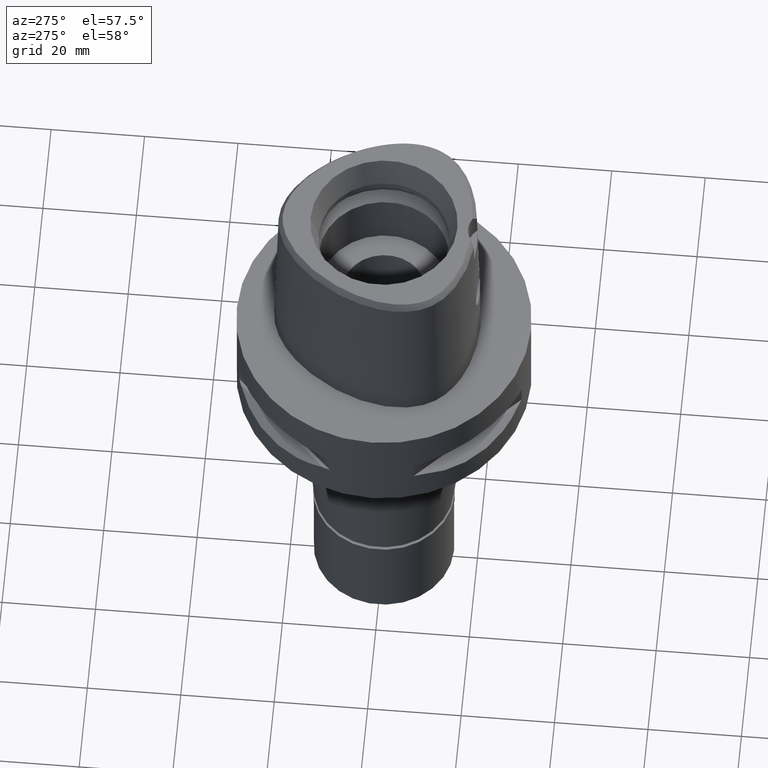
[diagram: clean part render]
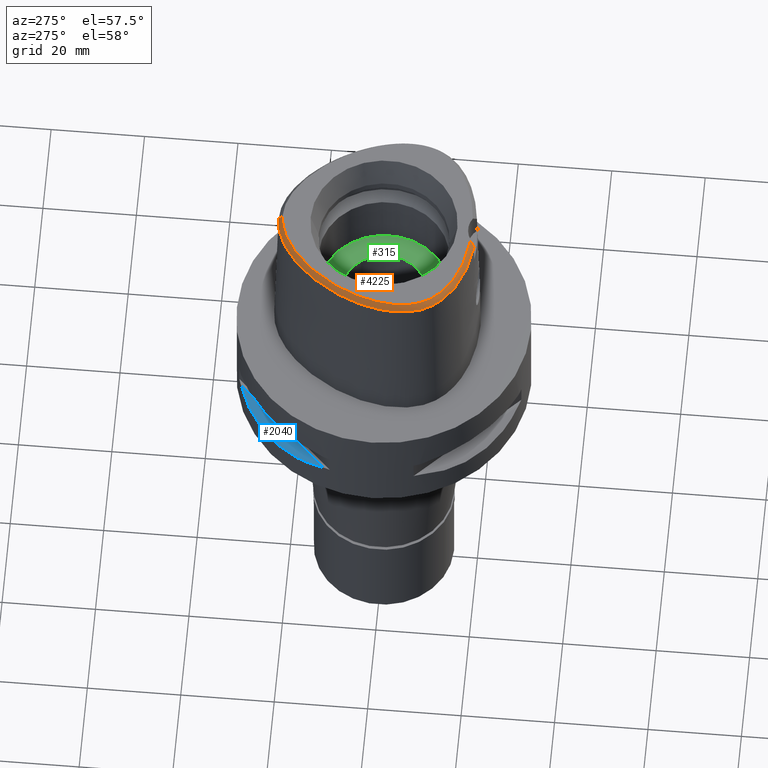
[diagram: same view with three faces highlighted in distinct colors, each labeled with its STEP entity id]
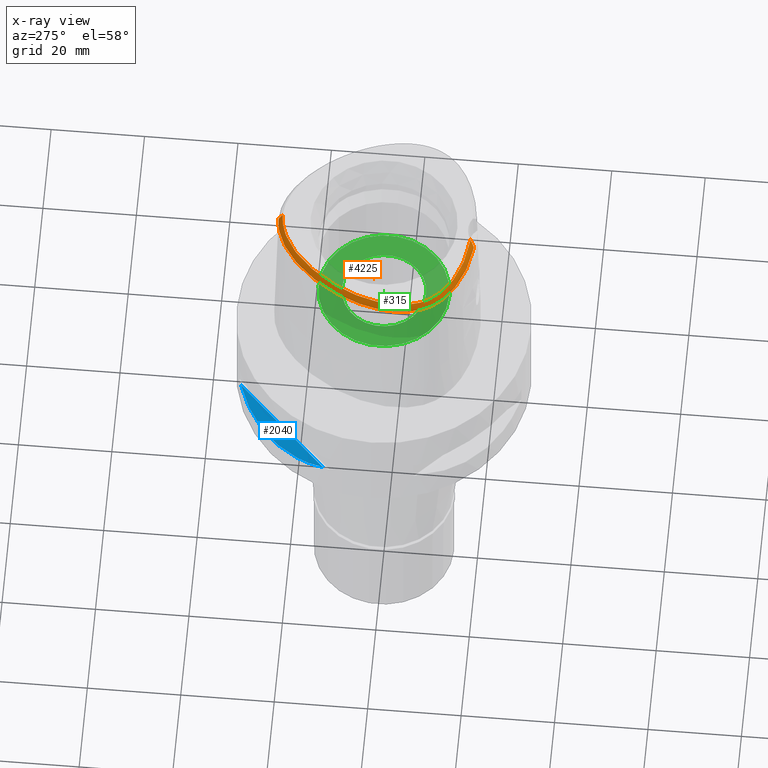
[diagram: x-ray of the same camera — body ghosted, the three highlighted faces saturated]
A machine part, auxiliary view with three faces highlighted in distinct colors.
The next image is the same camera in x-ray (body ghosted, the three faces saturated) — at least one of them is partly hidden behind the body in this view.
Their STEP definitions:

[orange] entity #4225 — the highlighted face is a freeform B-spline surface patch.
#14 = CARTESIAN_POINT ( 'NONE',  ( -2.682279906006999948, -18.78035848609999903, 38.00000000000000000 ) ) ;
#15 = CARTESIAN_POINT ( 'NONE',  ( -14.15561487457000034, 14.37251134389999940, 36.36553170129000279 ) ) ;
#38 = CARTESIAN_POINT ( 'NONE',  ( -13.88125040610999861, 14.14979837763999981, 36.96245013272000079 ) ) ;
#69 = CARTESIAN_POINT ( 'NONE',  ( -11.90262928197000036, 16.35908743151999900, 36.96245287757999165 ) ) ;
#91 = CARTESIAN_POINT ( 'NONE',  ( -2.735698246182634907, 21.34559102902546712, 38.00000000000336087 ) ) ;
#93 = CARTESIAN_POINT ( 'NONE',  ( -18.82196732919999960, -11.93859148648999913, 36.96245027513999304 ) ) ;
#113 = CARTESIAN_POINT ( 'NONE',  ( -16.93638123745656188, -13.22593246128079869, 37.99999999999731415 ) ) ;
#114 = CARTESIAN_POINT ( 'NONE',  ( -20.92478965621000242, -8.037788835625001127, 36.36553208403999804 ) ) ;
#143 = CARTESIAN_POINT ( 'NONE',  ( -16.88647904404979627, 8.517821442301801937, 38.00000000000139977 ) ) ;
#144 = CARTESIAN_POINT ( 'NONE',  ( -18.17235007819999737, -13.32913049258000093, 36.36553226932000626 ) ) ;
#167 = CARTESIAN_POINT ( 'NONE',  ( -19.64434054693006715, 1.520253387635419173, 37.99999999999666755 ) ) ;
#168 = CARTESIAN_POINT ( 'NONE',  ( -20.03207839318999817, -8.619615530778999002, 37.55936869522999189 ) ) ;
#191 = CARTESIAN_POINT ( 'NONE',  ( -19.78262210840123103, -8.543146992551859498, 38.00000000000299138 ) ) ;
#192 = CARTESIAN_POINT ( 'NONE',  ( -14.95020069249000016, -14.75015485291999973, 38.15628685411000021 ) ) ;
#210 = EDGE_CURVE ( 'NONE', #2037, #1228, #1054, .T. ) ;
#221 = CARTESIAN_POINT ( 'NONE',  ( -12.78586055575000024, -17.21545330188000023, 36.36553202803000318 ) ) ;
#247 = CARTESIAN_POINT ( 'NONE',  ( -4.793915152027000914, -19.17527128685999926, 36.96245047760999825 ) ) ;
#253 = CARTESIAN_POINT ( 'NONE',  ( -8.190760515302001110, 19.90052794231999655, 36.36553225457000593 ) ) ;
#270 = CARTESIAN_POINT ( 'NONE',  ( -14.71655449176000019, -16.16976819960000000, 36.36553270585999798 ) ) ;
#277 = CARTESIAN_POINT ( 'NONE',  ( -10.90458607742999853, 17.31921845882000000, 36.96245300241999843 ) ) ;
#294 = CARTESIAN_POINT ( 'NONE',  ( -6.371299248503000889, -19.26847960896999723, 36.36553203572999848 ) ) ;
#301 = CARTESIAN_POINT ( 'NONE',  ( -11.39981737510000137, 15.86238998910999953, 38.15628658213999813 ) ) ;
#321 = CARTESIAN_POINT ( 'NONE',  ( -2.084620644797000377, -19.08405090843999830, 37.55936894352999644 ) ) ;
#326 = CARTESIAN_POINT ( 'NONE',  ( 0.6090471797555999656, 21.93173460623999915, 37.55936857148000740 ) ) ;
#330 = CARTESIAN_POINT ( 'NONE',  ( -20.09619618741216840, -10.23243843868544189, 36.52186244848004293 ) ) ;
#346 = CARTESIAN_POINT ( 'NONE',  ( -4.706994425064518595, -18.56721852572622211, 38.00000000000462563 ) ) ;
#347 = CARTESIAN_POINT ( 'NONE',  ( -3.559529968557000323, 21.38391089510999876, 37.55936882499000262 ) ) ;
#349 = CARTESIAN_POINT ( 'NONE',  ( -18.90964971338053147, -12.28759719904723369, 36.52186244848004293 ) ) ;
#371 = CARTESIAN_POINT ( 'NONE',  ( -12.15403523541000119, 16.60743615272000184, 36.36553602530999285 ) ) ;
#399 = CARTESIAN_POINT ( 'NONE',  ( -18.15770850321000296, 5.635441311908000017, 38.15628691493000701 ) ) ;
#408 = ORIENTED_EDGE ( 'NONE', *, *, #874, .T. ) ;
#423 = CARTESIAN_POINT ( 'NONE',  ( -20.30807271839000094, -4.310553995648001013, 38.15628693060000387 ) ) ;
#442 = CARTESIAN_POINT ( 'NONE',  ( -6.188376196366547788, -18.31830638231498298, 38.00000000000277822 ) ) ;
#444 = CARTESIAN_POINT ( 'NONE',  ( -20.18748077147999709, 3.155086549848000299, 36.36553429178000130 ) ) ;
#469 = CARTESIAN_POINT ( 'NONE',  ( -18.31748213707096795, -11.58791794387865437, 37.99999999999748468 ) ) ;
#470 = CARTESIAN_POINT ( 'NONE',  ( -20.70794961852000071, -8.826797661603999146, 36.36553218745999771 ) ) ;
#491 = CARTESIAN_POINT ( 'NONE',  ( -11.46564124494306824, 15.92741340513072856, 38.00000000000417089 ) ) ;
#492 = CARTESIAN_POINT ( 'NONE',  ( -16.29919432625000297, -13.69510981811999883, 38.15628696512000317 ) ) ;
#512 = CARTESIAN_POINT ( 'NONE',  ( -18.24149111487000141, -11.53509569780000099, 38.15628697414000214 ) ) ;
#520 = CARTESIAN_POINT ( 'NONE',  ( -1.574545528900000111E-11, 22.56201468012000078, 36.52186680743999858 ) ) ;
#537 = CARTESIAN_POINT ( 'NONE',  ( -12.44116897271257294, 14.89128547409854519, 38.00000000000689226 ) ) ;
#539 = CARTESIAN_POINT ( 'NONE',  ( -19.89425573369999967, -7.788108179216000515, 38.15628695899999911 ) ) ;
#561 = EDGE_LOOP ( 'NONE', ( #408, #2870, #3857, #3106 ) ) ;
#564 = CARTESIAN_POINT ( 'NONE',  ( -6.759433772716245237, 19.65454812512846061, 37.99999999999781863 ) ) ;
#565 = CARTESIAN_POINT ( 'NONE',  ( -15.66089399674000227, -14.22552793682999983, 38.15628693306999963 ) ) ;
#590 = CARTESIAN_POINT ( 'NONE',  ( -10.37555402557000050, -17.82577395762999828, 36.96245210350999599 ) ) ;
#618 = CARTESIAN_POINT ( 'NONE',  ( -12.48307952214000061, -16.57677265975999603, 37.55936865225000076 ) ) ;
#627 = CARTESIAN_POINT ( 'NONE',  ( -4.221609895908000176, 20.78012750210999826, 38.15628694924000541 ) ) ;
#645 = CARTESIAN_POINT ( 'NONE',  ( -6.304494562574999961, -18.92147017935999997, 36.96245034502000237 ) ) ;
#650 = CARTESIAN_POINT ( 'NONE',  ( -10.42711818056999995, 16.79809784193000155, 38.15628656333999658 ) ) ;
#665 = CARTESIAN_POINT ( 'NONE',  ( -13.45877726181000078, -16.08090596777000059, 37.55936868451999544 ) ) ;
#670 = CARTESIAN_POINT ( 'NONE',  ( -7.250791040499000140, 20.48824525087999859, 36.36553221753000287 ) ) ;
#672 = CARTESIAN_POINT ( 'NONE',  ( -2.376843896518209931, 22.39422508474159201, 36.52186244848004293 ) ) ;
#685 = CARTESIAN_POINT ( 'NONE',  ( -2.339047829579000037, -19.77621625256000115, 36.36553316183000106 ) ) ;
#693 = CARTESIAN_POINT ( 'NONE',  ( -7.799596866748999879, 19.31181190207000142, 37.55936871331999782 ) ) ;
#699 = CARTESIAN_POINT ( 'NONE',  ( -21.07430010672547382, -0.4408303445193073600, 36.52186244848004293 ) ) ;
#716 = CARTESIAN_POINT ( 'NONE',  ( 0.4010250955880000356, 21.94252875099999756, 37.55936870059999677 ) ) ;
#735 = CARTESIAN_POINT ( 'NONE',  ( -18.48357437321000063, 5.772141510946000587, 37.55936879158999631 ) ) ;
#761 = CARTESIAN_POINT ( 'NONE',  ( -20.21289916717000068, -2.186441093946000169, 38.15628698880000513 ) ) ;
#793 = CARTESIAN_POINT ( 'NONE',  ( -15.46417231459999897, 11.40156152031999959, 37.55936897250000328 ) ) ;
#815 = CARTESIAN_POINT ( 'NONE',  ( -3.522896839653766321, -18.70811514173364642, 37.99999999999904077 ) ) ;
#817 = CARTESIAN_POINT ( 'NONE',  ( -12.89877010955000003, 15.30103412609000024, 36.96245101198000071 ) ) ;
#842 = CARTESIAN_POINT ( 'NONE',  ( -20.54375063498000031, 0.3470507299212000629, 36.96245268442000054 ) ) ;
#866 = CARTESIAN_POINT ( 'NONE',  ( -18.79649882724764964, 4.256255933890432885, 37.99999999999680256 ) ) ;
#867 = CARTESIAN_POINT ( 'NONE',  ( -20.88880712119999572, -6.256237671464000449, 36.96245074902000738 ) ) ;
#874 = EDGE_CURVE ( 'NONE', #3910, #3824, #3610, .T. ) ;
#890 = CARTESIAN_POINT ( 'NONE',  ( -15.87857969376999989, -14.50397203446000027, 37.55936874044999740 ) ) ;
#913 = CARTESIAN_POINT ( 'NONE',  ( -20.12460019942000145, -9.443526376059001137, 36.96245074920999940 ) ) ;
#943 = CARTESIAN_POINT ( 'NONE',  ( -15.00295592773807840, -14.82617991125373891, 38.00000000000046896 ) ) ;
#944 = CARTESIAN_POINT ( 'NONE',  ( -17.11999605601999974, -13.41129618159000181, 37.55936867769999310 ) ) ;
#953 = DIRECTION ( 'NONE',  ( -1.103957904740014787E-11, -0.5092834681090075977, 0.8605988316927122295 ) ) ;
#971 = CARTESIAN_POINT ( 'NONE',  ( -21.23964671826000128, -6.298992860830000318, 36.36553267215000318 ) ) ;
#994 = CARTESIAN_POINT ( 'NONE',  ( -2.315192615092000139, -19.42377305223000050, 36.96245105986000112 ) ) ;
#1001 = CARTESIAN_POINT ( 'NONE',  ( -2.130580368720000006, 22.10660074423000054, 36.96245044786000022 ) ) ;
#1030 = CARTESIAN_POINT ( 'NONE',  ( -9.465367539356998705, 17.63428323412999887, 38.15628680009000107 ) ) ;
#1045 = CARTESIAN_POINT ( 'NONE',  ( -2.659091465188000214, -19.04529799372999932, 37.55936897180000500 ) ) ;
#1051 = CARTESIAN_POINT ( 'NONE',  ( -7.604015042473000641, 19.01745388193999986, 38.15628694269000221 ) ) ;
#1054 = B_SPLINE_CURVE_WITH_KNOTS ( 'NONE', 3,
 ( #1807, #3430, #1075, #1836, #4526, #3362, #1102, #349, #3339, #330, #1877, #2580, #4172, #699, #4977, #1857, #1502, #4113, #3391, #4475, #672, #4150, #1433 ),
 .UNSPECIFIED., .F., .F.,
 ( 4, 1, 1, 1, 1, 1, 1, 1, 1, 1, 1, 1, 1, 1, 1, 1, 1, 1, 1, 1, 4 ),
 ( 0.0000000000000000000, 0.03580973941716571185, 0.1234633994701219151, 0.1672902294965474546, 0.2111170595229729940, 0.2549438895495037549, 0.2768573045627165108, 0.2987707195758241285, 0.3206841345891420225, 0.3425975496023548894, 0.3864243796287802901, 0.4302512096552058574, 0.4740780396816314246, 0.5617316997345875862, 0.6493853597875438588, 0.7370390198403948823, 0.8246926798932460168, 0.8685195099196715285, 0.9123463399461285706, 0.9561731699725646294, 1.000000000000000000 ),
 .UNSPECIFIED. ) ;
#1067 = CARTESIAN_POINT ( 'NONE',  ( -2.714526537066000333, -19.74963786283999667, 36.36553321337999733 ) ) ;
#1072 = CARTESIAN_POINT ( 'NONE',  ( 0.4272751750131000281, 22.64864445263000192, 36.36553220741000558 ) ) ;
#1075 = CARTESIAN_POINT ( 'NONE',  ( -7.300578999876935704, -19.07170748891635270, 36.52186244848004293 ) ) ;
#1089 = CARTESIAN_POINT ( 'NONE',  ( -11.41714857666000071, -17.04922920670000153, 37.55936863344999921 ) ) ;
#1096 = CARTESIAN_POINT ( 'NONE',  ( 0.6482317870641000068, 22.63710033531999954, 36.36553172845000148 ) ) ;
#1102 = CARTESIAN_POINT ( 'NONE',  ( -17.90324032096463114, -13.53935111954962700, 36.52186244848004293 ) ) ;
#1120 = CARTESIAN_POINT ( 'NONE',  ( -17.11638653573000113, 8.641056364138000490, 37.55936880642000375 ) ) ;
#1142 = CARTESIAN_POINT ( 'NONE',  ( -19.89700593447999921, 1.585135570823000162, 37.55936985146000495 ) ) ;
#1167 = CARTESIAN_POINT ( 'NONE',  ( -2.841965291530507365, -18.76757795571910492, 37.99999999999995737 ) ) ;
#1169 = CARTESIAN_POINT ( 'NONE',  ( -18.80944024319999741, 5.908841709984000268, 36.96245066826000425 ) ) ;
#1197 = CARTESIAN_POINT ( 'NONE',  ( -19.04161127055000335, 4.345510450024000271, 37.55936853625000538 ) ) ;
#1211 = CARTESIAN_POINT ( 'NONE',  ( -3.637738201363999835, -19.56971413236999879, 36.52186244848000030 ) ) ;
#1219 = CARTESIAN_POINT ( 'NONE',  ( -17.83974496342000293, 7.211005655489000077, 37.55936898027999860 ) ) ;
#1228 = VERTEX_POINT ( 'NONE', #4660 ) ;
#1240 = CARTESIAN_POINT ( 'NONE',  ( -20.27898581532276623, -6.181921586190226137, 37.99999999999830180 ) ) ;
#1241 = CARTESIAN_POINT ( 'NONE',  ( -19.11220543636000002, -12.14033938082999953, 36.36553192563999204 ) ) ;
#1267 = CARTESIAN_POINT ( 'NONE',  ( -3.470663397168999981E-11, 21.68728795390000030, 38.00000000000000000 ) ) ;
#1268 = CARTESIAN_POINT ( 'NONE',  ( -20.05983946533000051, -7.007754796703999922, 38.15628696427999955 ) ) ;
#1292 = CARTESIAN_POINT ( 'NONE',  ( -20.40763731352000221, -7.070670777564999732, 37.55936865246999901 ) ) ;
#1316 = CARTESIAN_POINT ( 'NONE',  ( -15.71788912669608607, -14.29843101565604258, 38.00000000000226663 ) ) ;
#1317 = CARTESIAN_POINT ( 'NONE',  ( -18.39195674092999866, -12.51888354077000010, 36.96245084350000099 ) ) ;
#1345 = CARTESIAN_POINT ( 'NONE',  ( -3.481017203588733455, 21.13509756881288837, 37.99999999999887734 ) ) ;
#1347 = CARTESIAN_POINT ( 'NONE',  ( -19.52420267404000143, -9.975983566325000496, 37.55936875223999749 ) ) ;
#1374 = CARTESIAN_POINT ( 'NONE',  ( -3.624620302294999874, -19.67016351520000228, 36.36553310135000316 ) ) ;
#1381 = CARTESIAN_POINT ( 'NONE',  ( -5.851016583984999464, 20.05017033919999747, 38.15628688577000105 ) ) ;
#1394 = CARTESIAN_POINT ( 'NONE',  ( -3.513170095872999887, -18.61612458430000316, 38.15628686171999817 ) ) ;
#1401 = CARTESIAN_POINT ( 'NONE',  ( -5.164929728134000975, 20.77253018845999932, 37.55936883618000621 ) ) ;
#1420 = CARTESIAN_POINT ( 'NONE',  ( -11.28270961391000071, -16.72239752252000144, 38.15628697102000189 ) ) ;
#1429 = CARTESIAN_POINT ( 'NONE',  ( -10.14104993555999989, 18.45126664518999959, 36.36553374588999787 ) ) ;
#1433 = CARTESIAN_POINT ( 'NONE',  ( -1.574545528900000111E-11, 22.56201468012000078, 36.52186680743999858 ) ) ;
#1443 = CARTESIAN_POINT ( 'NONE',  ( -14.16158106554000007, -15.26634536455999935, 38.15628689953999952 ) ) ;
#1449 = CARTESIAN_POINT ( 'NONE',  ( -6.013442772164999894, 20.36406042224999879, 37.55936887382999601 ) ) ;
#1469 = CARTESIAN_POINT ( 'NONE',  ( -2.713139573433000162, 21.25584019731999774, 38.15628689068999790 ) ) ;
#1496 = CARTESIAN_POINT ( 'NONE',  ( -20.41806261984999793, -0.9706525413620999965, 37.55936884010999677 ) ) ;
#1502 = CARTESIAN_POINT ( 'NONE',  ( -13.70645028111149344, 15.04851272300912335, 36.52186244848004293 ) ) ;
#1522 = CARTESIAN_POINT ( 'NONE',  ( -15.12356429809999980, 13.12083916591999966, 36.36553293315999724 ) ) ;
#1544 = CARTESIAN_POINT ( 'NONE',  ( -21.26802061852999870, -2.082605337003999857, 36.36553177238000245 ) ) ;
#1571 = CARTESIAN_POINT ( 'NONE',  ( -14.26948463650000143, 12.49280876299000020, 38.15628687781000394 ) ) ;
#1600 = CARTESIAN_POINT ( 'NONE',  ( -16.05277789754000040, 11.79276291938000121, 36.36553321595000199 ) ) ;
#1623 = CARTESIAN_POINT ( 'NONE',  ( -2.017025177696294858, 21.50280829367497404, 38.00000000000243716 ) ) ;
#1624 = CARTESIAN_POINT ( 'NONE',  ( -17.64561054852000055, -12.85766694215000072, 37.55936871729999638 ) ) ;
#1645 = CARTESIAN_POINT ( 'NONE',  ( -18.67608643721449369, -11.03561202291076881, 38.00000000000019185 ) ) ;
#1648 = CARTESIAN_POINT ( 'NONE',  ( -17.90898031336000074, -13.09339871737000038, 36.96245049331000132 ) ) ;
#1668 = B_SPLINE_CURVE_WITH_KNOTS ( 'NONE', 3,
 ( #3616, #2473, #4837, #4034 ),
 .UNSPECIFIED., .F., .F.,
 ( 4, 4 ),
 ( 0.0000000000000000000, 1.000000000000000000 ),
 .UNSPECIFIED. ) ;
#1678 = CARTESIAN_POINT ( 'NONE',  ( -21.36828742065999975, -4.320449340402999994, 36.36553238107000396 ) ) ;
#1702 = CARTESIAN_POINT ( 'NONE',  ( -17.91005512243640041, -12.13778127739362311, 38.00000000000078160 ) ) ;
#1703 = CARTESIAN_POINT ( 'NONE',  ( -19.79356315041999892, -9.319628412919998439, 37.55936882596999737 ) ) ;
#1725 = CARTESIAN_POINT ( 'NONE',  ( -20.40060226222636075, -4.311417605381375751, 38.00000000000411404 ) ) ;
#1727 = CARTESIAN_POINT ( 'NONE',  ( -20.37001400585999988, -8.723206596192000006, 36.96245044135000057 ) ) ;
#1755 = CARTESIAN_POINT ( 'NONE',  ( -3.587470233487999760, -19.31881720490000021, 36.96245102147999972 ) ) ;
#1778 = CARTESIAN_POINT ( 'NONE',  ( -4.843921986044999350, -19.52509341286999955, 36.36553224458000244 ) ) ;
#1785 = CARTESIAN_POINT ( 'NONE',  ( -8.523019350318998377, 18.37230777117000002, 38.15628699711000138 ) ) ;
#1799 = CARTESIAN_POINT ( 'NONE',  ( -9.104849329242000522, -18.23887418746999955, 36.96245311357999697 ) ) ;
#1805 = CARTESIAN_POINT ( 'NONE',  ( -1.400051809288999971, 22.22060971340999913, 36.96245008478000216 ) ) ;
#1807 = CARTESIAN_POINT ( 'NONE',  ( -3.637738201363999835, -19.56971413236999879, 36.52186244848000030 ) ) ;
#1824 = CARTESIAN_POINT ( 'NONE',  ( -2.686809001127000052, -19.39746792829000199, 36.96245109259000117 ) ) ;
#1832 = CARTESIAN_POINT ( 'NONE',  ( -4.347455389300000306, 21.11040453342999967, 37.55936869485999807 ) ) ;
#1836 = CARTESIAN_POINT ( 'NONE',  ( -10.91891098965328055, -18.03046406390440026, 36.52186244848004293 ) ) ;
#1849 = CARTESIAN_POINT ( 'NONE',  ( -2.106311742978999924, -19.43662726124999907, 36.96245102601999832 ) ) ;
#1854 = CARTESIAN_POINT ( 'NONE',  ( 0.6286394834098999462, 22.28441747077999935, 36.96245014996000577 ) ) ;
#1857 = CARTESIAN_POINT ( 'NONE',  ( -17.27359245833522294, 9.972912913898216658, 36.52186244848004293 ) ) ;
#1874 = CARTESIAN_POINT ( 'NONE',  ( -16.62509408197999861, 10.22419463632000003, 36.96245046947999668 ) ) ;
#1877 = CARTESIAN_POINT ( 'NONE',  ( -20.67704215116155453, -8.734985316449400017, 36.52186244848004293 ) ) ;
#1898 = CARTESIAN_POINT ( 'NONE',  ( -14.55417785704000089, 12.70215223062999854, 37.55936889625999697 ) ) ;
#1926 = CARTESIAN_POINT ( 'NONE',  ( -20.23928888243000301, 1.673030731871999910, 36.96245316391000557 ) ) ;
#1948 = CARTESIAN_POINT ( 'NONE',  ( -17.52074902634999987, 7.058967424023999904, 38.15628684800000059 ) ) ;
#1976 = CARTESIAN_POINT ( 'NONE',  ( -13.16203509702999952, 15.53676884143999892, 36.36553308638999482 ) ) ;
#2002 = CARTESIAN_POINT ( 'NONE',  ( -14.34402387965482184, 12.54761970512554470, 38.00000000000527223 ) ) ;
#2004 = CARTESIAN_POINT ( 'NONE',  ( -19.20146630724000048, -11.35415670124999998, 36.96245058168000241 ) ) ;
#2025 = CARTESIAN_POINT ( 'NONE',  ( -5.058220461388591715, 20.53445508814170495, 38.00000000000527933 ) ) ;
#2028 = CARTESIAN_POINT ( 'NONE',  ( -17.61747789945999898, -13.91351645992000030, 36.36553212244999855 ) ) ;
#2037 = VERTEX_POINT ( 'NONE', #1211 ) ;
#2051 = CARTESIAN_POINT ( 'NONE',  ( -18.24302769442125083, 5.671232572957731755, 38.00000000000159872 ) ) ;
#2053 = CARTESIAN_POINT ( 'NONE',  ( -20.97701905032000269, -5.318211469516999301, 36.96245108982999739 ) ) ;
#2081 = CARTESIAN_POINT ( 'NONE',  ( -18.59694803237999849, -10.98762937426000086, 38.15628692797000099 ) ) ;
#2106 = CARTESIAN_POINT ( 'NONE',  ( -12.37132652997715176, -16.34104299088043888, 37.99999999999943867 ) ) ;
#2107 = CARTESIAN_POINT ( 'NONE',  ( -18.89920716981000126, -11.17089303774999998, 37.55936875481999948 ) ) ;
#2159 = CARTESIAN_POINT ( 'NONE',  ( -6.237689876646999920, -18.57446074974999917, 37.55936865431999649 ) ) ;
#2165 = CARTESIAN_POINT ( 'NONE',  ( -1.443992829189999938, 22.57133419810999797, 36.36553162575999920 ) ) ;
#2183 = CARTESIAN_POINT ( 'NONE',  ( -13.62702884383000068, -16.39170135232999925, 36.96245041612999671 ) ) ;
#2189 = CARTESIAN_POINT ( 'NONE',  ( -10.66585212899999924, 17.05865815038000122, 37.55936978287999750 ) ) ;
#2205 = CARTESIAN_POINT ( 'NONE',  ( -10.49302957101999922, -18.15907225504999900, 36.36553480589000031 ) ) ;
#2210 = CARTESIAN_POINT ( 'NONE',  ( -11.14332002587000048, 17.57977876726000233, 36.36553622197000379 ) ) ;
#2231 = CARTESIAN_POINT ( 'NONE',  ( -15.15169264742999999, -15.04052295678999940, 37.55936896306000250 ) ) ;
#2239 = CARTESIAN_POINT ( 'NONE',  ( -8.733853281386000589, 18.65593331164999924, 37.55936855991000556 ) ) ;
#2257 = CARTESIAN_POINT ( 'NONE',  ( -5.020371889214000127, 20.45001253790999840, 38.15628689911999771 ) ) ;
#2278 = CARTESIAN_POINT ( 'NONE',  ( -13.60688593763999954, 13.92708541138000022, 37.55936856415999614 ) ) ;
#2305 = CARTESIAN_POINT ( 'NONE',  ( -20.56460631761999736, -2.151829174965999680, 37.55936858333000572 ) ) ;
#2334 = CARTESIAN_POINT ( 'NONE',  ( -7.599370508970048732, -18.01010694911068910, 38.00000000000814993 ) ) ;
#2335 = CARTESIAN_POINT ( 'NONE',  ( -20.99668819064000047, -3.250729922139000028, 36.96245043574000277 ) ) ;
#2356 = CARTESIAN_POINT ( 'NONE',  ( -17.42783961906999934, 8.808001321435000364, 36.96245070316999914 ) ) ;
#2384 = CARTESIAN_POINT ( 'NONE',  ( -14.21001600787614549, -15.34519100086094667, 38.00000000000134293 ) ) ;
#2386 = CARTESIAN_POINT ( 'NONE',  ( -20.06864378250000058, -1.023547219785000184, 38.15628689772999849 ) ) ;
#2411 = B_SPLINE_SURFACE_WITH_KNOTS ( 'NONE', 3, 3, ( 
 ( #4802, #326, #1854, #1096 ),
 ( #4472, #716, #2956, #1072 ),
 ( #3003, #4569, #3314, #2983 ),
 ( #4544, #3769, #2648, #4951 ),
 ( #4192, #4523, #1805, #2165 ),
 ( #3406, #3388, #1001, #3358 ),
 ( #1469, #4860, #2547, #3792 ),
 ( #3815, #347, #4107, #3023 ),
 ( #627, #1832, #4931, #2622 ),
 ( #2257, #1401, #4904, #3745 ),
 ( #1381, #1449, #4882, #4148 ),
 ( #3722, #4170, #2932, #670 ),
 ( #1051, #693, #2601, #253 ),
 ( #1785, #2239, #3337, #4497 ),
 ( #1030, #2577, #4130, #1429 ),
 ( #650, #2189, #277, #2210 ),
 ( #301, #2667, #69, #371 ),
 ( #2685, #4293, #817, #1976 ),
 ( #3500, #2278, #38, #15 ),
 ( #1571, #1898, #3455, #1522 ),
 ( #4268, #793, #3946, #1600 ),
 ( #3074, #3125, #1874, #3153 ),
 ( #3054, #1120, #2356, #4212 ),
 ( #1948, #1219, #4594, #4974 ),
 ( #399, #735, #1169, #4667 ),
 ( #4639, #1197, #3531, #3874 ),
 ( #4315, #3427, #4692, #444 ),
 ( #2745, #1142, #1926, #2769 ),
 ( #3478, #3917, #842, #3838 ),
 ( #2386, #1496, #4614, #4235 ),
 ( #761, #2305, #3870, #1544 ),
 ( #3094, #2716, #2335, #3894 ),
 ( #423, #3634, #4827, #1678 ),
 ( #4342, #3228, #2053, #4747 ),
 ( #2464, #4771, #867, #971 ),
 ( #1268, #1292, #3580, #2847 ),
 ( #539, #2417, #2902, #114 ),
 ( #4445, #168, #1727, #470 ),
 ( #3970, #1703, #913, #3278 ),
 ( #3251, #1347, #4393, #3993 ),
 ( #4021, #3605, #2822, #2516 ),
 ( #2081, #2107, #2004, #4718 ),
 ( #512, #3556, #93, #1241 ),
 ( #4796, #2793, #1317, #2874 ),
 ( #4420, #1624, #1648, #144 ),
 ( #3176, #944, #2494, #2028 ),
 ( #492, #3201, #4053, #4367 ),
 ( #565, #890, #2441, #3657 ),
 ( #192, #2231, #2539, #3306 ),
 ( #1443, #2997, #4161, #270 ),
 ( #4464, #665, #2183, #3738 ),
 ( #4100, #618, #3713, #221 ),
 ( #1420, #1089, #3786, #2571 ),
 ( #2925, #4853, #590, #2205 ),
 ( #4124, #4896, #1799, #3350 ),
 ( #3684, #2596, #4143, #4517 ),
 ( #3762, #2159, #645, #294 ),
 ( #2976, #4539, #247, #1778 ),
 ( #1394, #4489, #1755, #1374 ),
 ( #3381, #1045, #1824, #1067 ),
 ( #4926, #2616, #994, #685 ),
 ( #3330, #321, #1849, #4875 ) ),
 .UNSPECIFIED., .F., .F., .F.,
 ( 4, 1, 1, 1, 1, 1, 1, 1, 1, 1, 1, 1, 1, 1, 1, 1, 1, 1, 1, 1, 1, 1, 1, 1, 1, 1, 1, 1, 1, 1, 1, 1, 1, 1, 1, 1, 1, 1, 1, 1, 1, 1, 1, 1, 1, 1, 1, 1, 1, 1, 1, 1, 1, 1, 1, 1, 1, 1, 1, 4 ),
 ( 4, 4 ),
 ( -0.01585043674195000044, 0.0000000000000000000, 0.01776034072165999858, 0.03552068144391999638, 0.05328102216616999870, 0.07104136288842999303, 0.08880170361069000817, 0.1065620443330000111, 0.1243223850551999909, 0.1420827257775000019, 0.1598430664997000095, 0.1776034072219000171, 0.1953637479442000002, 0.2131240886664000078, 0.2308844293887999943, 0.2486447701109999742, 0.2664051108332999851, 0.2841654515554999927, 0.3019257922778000314, 0.3196861329999999835, 0.3374464737223000221, 0.3552068144444999742, 0.3729671551668000129, 0.3907274958890999961, 0.4084878366113000037, 0.4262481773335999868, 0.4440085180557999944, 0.4617688587780999776, 0.4795291995003000407, 0.4972895402225999684, 0.5150498809447999760, 0.5328102216671000146, 0.5505705623893999423, 0.5683309031115999499, 0.5860912438338999886, 0.6038515845561001072, 0.6216119252783999238, 0.6393722660005999314, 0.6571326067228999701, 0.6748929474452000088, 0.6926532881674000164, 0.7104136288896999440, 0.7281739696118999516, 0.7459343103341999903, 0.7636946510563999979, 0.7814549917787000366, 0.7992153325008999332, 0.8169756732231999719, 0.8347360139455000105, 0.8524963546678000492, 0.8702566953900000568, 0.8880170361122000644, 0.9057773768344999921, 0.9235377175566999997, 0.9412980582790000383, 0.9590583990012000459, 0.9768187397236000047, 0.9945790804457999013, 1.000000000000000000, 1.006922200500000031 ),
 ( -0.08243471511467000135, 1.082460698241999975 ),
 .UNSPECIFIED. ) ;
#2416 = CARTESIAN_POINT ( 'NONE',  ( -11.31790883121087354, -16.80796958613168357, 38.00000000000125056 ) ) ;
#2417 = CARTESIAN_POINT ( 'NONE',  ( -20.23776704119999792, -7.871335064685999861, 37.55936866735000024 ) ) ;
#2440 = CARTESIAN_POINT ( 'NONE',  ( -15.24692477332227725, 11.25717358966418935, 38.00000000000613909 ) ) ;
#2441 = CARTESIAN_POINT ( 'NONE',  ( -16.09626539079999930, -14.78241613207999983, 36.96245054782999517 ) ) ;
#2464 = CARTESIAN_POINT ( 'NONE',  ( -20.18712792708999615, -6.170727292731999825, 38.15628690276000157 ) ) ;
#2473 = CARTESIAN_POINT ( 'NONE',  ( -3.014271304856287692, -18.99139391533377363, 37.59976690305183666 ) ) ;
#2492 = CARTESIAN_POINT ( 'NONE',  ( -9.524337278000640339, 17.70558492631137071, 37.99999999999957367 ) ) ;
#2494 = CARTESIAN_POINT ( 'NONE',  ( -17.36873697773999936, -13.66240632076000061, 36.96245040007999449 ) ) ;
#2516 = CARTESIAN_POINT ( 'NONE',  ( -19.85293275617999953, -10.91812600521999954, 36.36553192486000086 ) ) ;
#2539 = CARTESIAN_POINT ( 'NONE',  ( -15.35318460238000071, -15.33089106064999996, 36.96245107202000213 ) ) ;
#2547 = CARTESIAN_POINT ( 'NONE',  ( -2.885459573592999760, 21.94142411909999879, 36.96245082917999980 ) ) ;
#2571 = CARTESIAN_POINT ( 'NONE',  ( -11.68602650215000160, -17.70289257504999725, 36.36553195831999830 ) ) ;
#2577 = CARTESIAN_POINT ( 'NONE',  ( -9.690595004759998687, 17.90661103781999941, 37.55936911535999201 ) ) ;
#2580 = CARTESIAN_POINT ( 'NONE',  ( -21.14970188363580661, -6.717195958887920426, 36.52186244848004293 ) ) ;
#2596 = CARTESIAN_POINT ( 'NONE',  ( -7.661115622121998925, -18.26355488576000141, 37.55936950221000359 ) ) ;
#2601 = CARTESIAN_POINT ( 'NONE',  ( -7.995178691026000983, 19.60616992219000210, 36.96245048394000321 ) ) ;
#2616 = CARTESIAN_POINT ( 'NONE',  ( -2.291337400606000330, -19.07132985189999985, 37.55936895789999852 ) ) ;
#2622 = CARTESIAN_POINT ( 'NONE',  ( -4.599146376083000476, 21.77095859606999895, 36.36553218611000204 ) ) ;
#2648 = CARTESIAN_POINT ( 'NONE',  ( -0.6883956192318000378, 22.28697339717000148, 36.96245030460999459 ) ) ;
#2667 = CARTESIAN_POINT ( 'NONE',  ( -11.65122332853999865, 16.11073871031999971, 37.55936972986000200 ) ) ;
#2685 = CARTESIAN_POINT ( 'NONE',  ( -12.37224013458000016, 14.82956469538000022, 38.15628686315999829 ) ) ;
#2716 = CARTESIAN_POINT ( 'NONE',  ( -20.64363264536999765, -3.266617217707999732, 37.55936869284999347 ) ) ;
#2745 = CARTESIAN_POINT ( 'NONE',  ( -19.55472298654000340, 1.497240409773999970, 38.15628653899999279 ) ) ;
#2769 = CARTESIAN_POINT ( 'NONE',  ( -20.58157183036999882, 1.760925892921999969, 36.36553647637000353 ) ) ;
#2791 = CARTESIAN_POINT ( 'NONE',  ( -10.17136073855333223, -17.24644253469905308, 38.00000000000412115 ) ) ;
#2793 = CARTESIAN_POINT ( 'NONE',  ( -18.11471131177999894, -12.29962953434000106, 37.55936886602000158 ) ) ;
#2822 = CARTESIAN_POINT ( 'NONE',  ( -19.53968640094999998, -10.75435186944999977, 36.96245027464999566 ) ) ;
#2846 = CARTESIAN_POINT ( 'NONE',  ( -20.16012968311533626, -1.009698174524653824, 38.00000000000839862 ) ) ;
#2847 = CARTESIAN_POINT ( 'NONE',  ( -21.10323300989999851, -7.196502739288000328, 36.36553202884999791 ) ) ;
#2870 = ORIENTED_EDGE ( 'NONE', *, *, #3954, .F. ) ;
#2872 = CARTESIAN_POINT ( 'NONE',  ( -19.98419490691860645, -7.809898894995296104, 38.00000000000394351 ) ) ;
#2874 = CARTESIAN_POINT ( 'NONE',  ( -18.66920217006999749, -12.73813754721000002, 36.36553282099000484 ) ) ;
#2900 = CARTESIAN_POINT ( 'NONE',  ( -1.323674540693611679, 21.61098849316027426, 38.00000000000262190 ) ) ;
#2902 = CARTESIAN_POINT ( 'NONE',  ( -20.58127834871000061, -7.954561950154999117, 36.96245037570000136 ) ) ;
#2925 = CARTESIAN_POINT ( 'NONE',  ( -10.14060293465999862, -17.15917736277999950, 38.15628669874000423 ) ) ;
#2932 = CARTESIAN_POINT ( 'NONE',  ( -7.071344177082000471, 20.18377364932999640, 36.96245046042999860 ) ) ;
#2956 = CARTESIAN_POINT ( 'NONE',  ( 0.4141501353006000197, 22.29558660181999841, 36.96245045400999629 ) ) ;
#2976 = CARTESIAN_POINT ( 'NONE',  ( -4.693901483992000578, -18.47562703484999957, 38.15628694365000229 ) ) ;
#2983 = CARTESIAN_POINT ( 'NONE',  ( -0.02766375472411999881, 22.66112451077000145, 36.36553253766999916 ) ) ;
#2997 = CARTESIAN_POINT ( 'NONE',  ( -14.34657220760999863, -15.56748630957000046, 37.55936883497999901 ) ) ;
#3003 = CARTESIAN_POINT ( 'NONE',  ( -0.02535817531231999988, 21.60077290685999785, 38.15628691562000085 ) ) ;
#3023 = CARTESIAN_POINT ( 'NONE',  ( -3.772250681155000063, 22.05804010319999975, 36.36553266880999757 ) ) ;
#3054 = CARTESIAN_POINT ( 'NONE',  ( -16.80493345239000291, 8.474111406840000527, 38.15628690967000125 ) ) ;
#3074 = CARTESIAN_POINT ( 'NONE',  ( -16.01867191718000072, 9.861225699063998817, 38.15628694488000860 ) ) ;
#3094 = CARTESIAN_POINT ( 'NONE',  ( -20.29057710010999571, -3.282504513277999969, 38.15628694996000547 ) ) ;
#3106 = ORIENTED_EDGE ( 'NONE', *, *, #4965, .F. ) ;
#3125 = CARTESIAN_POINT ( 'NONE',  ( -16.32188299958000144, 10.04271016768999836, 37.55936870717999909 ) ) ;
#3153 = CARTESIAN_POINT ( 'NONE',  ( -16.92830516439000021, 10.40567910495000170, 36.36553223178000138 ) ) ;
#3175 = CARTESIAN_POINT ( 'NONE',  ( -19.54919922642135433, -9.228169790567953612, 38.00000000000469669 ) ) ;
#3176 = CARTESIAN_POINT ( 'NONE',  ( -16.87125513430999746, -13.16018604243000212, 38.15628695531999881 ) ) ;
#3199 = CARTESIAN_POINT ( 'NONE',  ( -19.28591707036579095, -9.869682450886195113, 38.00000000000360245 ) ) ;
#3201 = CARTESIAN_POINT ( 'NONE',  ( -16.53267128215000170, -13.96046227357000014, 37.55936865010999526 ) ) ;
#3226 = CARTESIAN_POINT ( 'NONE',  ( -19.26324493738620092, 2.868570891456458050, 38.00000000000640199 ) ) ;
#3228 = CARTESIAN_POINT ( 'NONE',  ( -20.62433196723999984, -5.295348007831999659, 37.55936897063000401 ) ) ;
#3250 = CARTESIAN_POINT ( 'NONE',  ( -20.36398648679275425, -5.278470727084752845, 38.00000000000393641 ) ) ;
#3251 = CARTESIAN_POINT ( 'NONE',  ( -19.20139985696999929, -9.831978645372000614, 38.15628692889000462 ) ) ;
#3257 = FACE_OUTER_BOUND ( 'NONE', #561, .T. ) ;
#3275 = CARTESIAN_POINT ( 'NONE',  ( -19.94188961899627799, 0.2242544969873314642, 38.00000000000778044 ) ) ;
#3278 = CARTESIAN_POINT ( 'NONE',  ( -20.45563724840999953, -9.567424339197998506, 36.36553267243999699 ) ) ;
#3306 = CARTESIAN_POINT ( 'NONE',  ( -15.55467655732999965, -15.62125916451999963, 36.36553318097000442 ) ) ;
#3314 = CARTESIAN_POINT ( 'NONE',  ( -0.02689522825352000032, 22.30767397614000203, 36.96245066365000298 ) ) ;
#3330 = CARTESIAN_POINT ( 'NONE',  ( -2.062929546614999499, -18.73147455563999841, 38.15628686104000167 ) ) ;
#3337 = CARTESIAN_POINT ( 'NONE',  ( -8.944687212452000935, 18.93955885211999757, 36.96245012271000263 ) ) ;
#3339 = CARTESIAN_POINT ( 'NONE',  ( -19.55745547455832067, -11.29150218115996296, 36.52186244848004293 ) ) ;
#3350 = CARTESIAN_POINT ( 'NONE',  ( -9.205387598525998527, -18.57766086468000211, 36.36553639707000229 ) ) ;
#3358 = CARTESIAN_POINT ( 'NONE',  ( -2.195910420455999823, 22.45397184790000011, 36.36553219772000034 ) ) ;
#3362 = CARTESIAN_POINT ( 'NONE',  ( -16.39211280192347786, -14.95758113319088523, 36.52186244848004293 ) ) ;
#3374 = VECTOR ( 'NONE', #953, 1000.000000000000227 ) ;
#3381 = CARTESIAN_POINT ( 'NONE',  ( -2.631373929250000021, -18.69312805918000109, 38.15628685101000173 ) ) ;
#3388 = CARTESIAN_POINT ( 'NONE',  ( -2.065250316984999834, 21.75922964056999831, 37.55936869798999567 ) ) ;
#3391 = CARTESIAN_POINT ( 'NONE',  ( -7.108589416785278559, 20.52412325828742468, 36.52186244848004293 ) ) ;
#3406 = CARTESIAN_POINT ( 'NONE',  ( -1.999920265249000018, 21.41185853691000318, 38.15628694813000266 ) ) ;
#3427 = CARTESIAN_POINT ( 'NONE',  ( -19.51240692049000103, 2.945811793617999719, 37.55936926252999797 ) ) ;
#3430 = CARTESIAN_POINT ( 'NONE',  ( -4.467522189395160659, -19.48130287050652854, 36.52186244848004293 ) ) ;
#3455 = CARTESIAN_POINT ( 'NONE',  ( -14.83887107757000123, 12.91149569827999954, 36.96245091470999711 ) ) ;
#3478 = CARTESIAN_POINT ( 'NONE',  ( -19.85123079582000116, 0.2057575987456999878, 38.15628661123999876 ) ) ;
#3500 = CARTESIAN_POINT ( 'NONE',  ( -13.33252146917999958, 13.70437244512999975, 38.15628699560000570 ) ) ;
#3531 = CARTESIAN_POINT ( 'NONE',  ( -19.37366233019999839, 4.466422535351999734, 36.96245006701000335 ) ) ;
#3555 = CARTESIAN_POINT ( 'NONE',  ( -13.33457781970264655, -15.85148397417124677, 38.00000000000395062 ) ) ;
#3556 = CARTESIAN_POINT ( 'NONE',  ( -18.53172922203000184, -11.73684359214000139, 37.55936862463999404 ) ) ;
#3578 = CARTESIAN_POINT ( 'NONE',  ( -4.254559144977275054, 20.86660163696783954, 38.00000000000230926 ) ) ;
#3580 = CARTESIAN_POINT ( 'NONE',  ( -20.75543516171000036, -7.133586758427000518, 36.96245034065999846 ) ) ;
#3602 = CARTESIAN_POINT ( 'NONE',  ( -17.45119705493878826, -12.68365517585456459, 38.00000000000889600 ) ) ;
#3605 = CARTESIAN_POINT ( 'NONE',  ( -19.22644004572000043, -10.59057773367999999, 37.55936862442999313 ) ) ;
#3610 = B_SPLINE_CURVE_WITH_KNOTS ( 'NONE', 3,
 ( #14, #1167, #815, #346, #442, #2334, #3892, #2791, #2416, #2106, #3555, #2384, #943, #1316, #4341, #113, #3602, #1702, #469, #1645, #3633, #3199, #3175, #191, #2872, #3656, #1240, #3250, #1725, #3969, #4019, #2846, #3275, #167, #3226, #866, #2051, #4795, #143, #4716, #2440, #2002, #4418, #537, #491, #4770, #2492, #3945, #4052, #564, #4824, #2025, #3578, #1345, #91, #1623, #2900, #4442, #4746, #1267 ),
 .UNSPECIFIED., .F., .F.,
 ( 4, 1, 1, 1, 1, 1, 1, 1, 1, 1, 1, 1, 1, 1, 1, 1, 1, 1, 1, 1, 1, 1, 1, 1, 1, 1, 1, 1, 1, 1, 1, 1, 1, 1, 1, 1, 1, 1, 1, 1, 1, 1, 1, 1, 1, 1, 1, 1, 1, 1, 1, 1, 1, 1, 1, 1, 1, 4 ),
 ( 0.0000000000000000000, 0.005420919554200098744, 0.02318126027639999531, 0.04094160099879995407, 0.05870194172099996166, 0.07646228244330000035, 0.09422262316550000794, 0.1119829638877999356, 0.1297433046099999432, 0.1475036453321999508, 0.1652639860544999895, 0.1830243267768000281, 0.2007846674991000668, 0.2185450082212999634, 0.2363053489436000021, 0.2540656896658000097, 0.2718260303881000484, 0.2895863711103000560, 0.3073467118325999836, 0.3251070525547999912, 0.3428673932771000299, 0.3606277339994000686, 0.3783880747216000762, 0.3961484154438998928, 0.4139087561661000114, 0.4316690968884000501, 0.4494294376106000577, 0.4671897783328999854, 0.4849501190552000240, 0.5027104597774000316, 0.5204708004996999593, 0.5382311412219000779, 0.5559914819442000056, 0.5737518226664000132, 0.5915121633886999408, 0.6092725041108999484, 0.6270328448331999871, 0.6447931855555000258, 0.6625535262777000334, 0.6803138669999999610, 0.6980742077221999686, 0.7158345484445000073, 0.7335948891667000149, 0.7513552298890000536, 0.7691155706112000612, 0.7868759113336000199, 0.8046362520558000275, 0.8223965927780999552, 0.8401569335002999628, 0.8579172742224999704, 0.8756776149448000091, 0.8934379556670000166, 0.9111982963893099363, 0.9289586371115700070, 0.9467189778338299666, 0.9644793185560800453, 0.9822396592783400049, 1.000000000000000000 ),
 .UNSPECIFIED. ) ;
#3616 = CARTESIAN_POINT ( 'NONE',  ( -2.682279906006999948, -18.78035848609999903, 38.00000000000000000 ) ) ;
#3633 = CARTESIAN_POINT ( 'NONE',  ( -18.99520880203930773, -10.46968343926230460, 38.00000000000177636 ) ) ;
#3634 = CARTESIAN_POINT ( 'NONE',  ( -20.66147761914999847, -4.313852443900000111, 37.55936874741999532 ) ) ;
#3656 = CARTESIAN_POINT ( 'NONE',  ( -20.15090095364314493, -7.024227649787214034, 38.00000000000559908 ) ) ;
#3657 = CARTESIAN_POINT ( 'NONE',  ( -16.31395108782999870, -15.06086022971000027, 36.36553235520000271 ) ) ;
#3684 = CARTESIAN_POINT ( 'NONE',  ( -7.577470214433000173, -17.92021182738999840, 38.15628666288999682 ) ) ;
#3713 = CARTESIAN_POINT ( 'NONE',  ( -12.63447003895000087, -16.89611298081999990, 36.96245034014000197 ) ) ;
#3722 = CARTESIAN_POINT ( 'NONE',  ( -6.712450450246000067, 19.57483044621999824, 38.15628694623000428 ) ) ;
#3738 = CARTESIAN_POINT ( 'NONE',  ( -13.79528042584999881, -16.70249673688999792, 36.36553214773000064 ) ) ;
#3745 = CARTESIAN_POINT ( 'NONE',  ( -5.454045405974000005, 21.41756548954000294, 36.36553271028999745 ) ) ;
#3751 = CARTESIAN_POINT ( 'NONE',  ( -3.470663397168999981E-11, 21.68728795390000030, 38.00000000000000000 ) ) ;
#3762 = CARTESIAN_POINT ( 'NONE',  ( -6.170885190719000768, -18.22745132015000280, 38.15628696361999772 ) ) ;
#3769 = CARTESIAN_POINT ( 'NONE',  ( -0.6662479254877000656, 21.93419536445000162, 37.55936863715999152 ) ) ;
#3786 = CARTESIAN_POINT ( 'NONE',  ( -11.55158753939999983, -17.37606089088000161, 36.96245029588999387 ) ) ;
#3792 = CARTESIAN_POINT ( 'NONE',  ( -2.971619573672000136, 22.28421607998999932, 36.36553279843000297 ) ) ;
#3815 = CARTESIAN_POINT ( 'NONE',  ( -3.453169612258000232, 21.04684629105999960, 38.15628690308000159 ) ) ;
#3824 = VERTEX_POINT ( 'NONE', #3751 ) ;
#3838 = CARTESIAN_POINT ( 'NONE',  ( -20.89001055457000078, 0.4176972955089000017, 36.36553572101999521 ) ) ;
#3857 = ORIENTED_EDGE ( 'NONE', *, *, #210, .F. ) ;
#3870 = CARTESIAN_POINT ( 'NONE',  ( -20.91631346807999847, -2.117217255984999991, 36.96245017786000631 ) ) ;
#3874 = CARTESIAN_POINT ( 'NONE',  ( -19.70571338983999965, 4.587334620681001063, 36.36553159777000133 ) ) ;
#3892 = CARTESIAN_POINT ( 'NONE',  ( -8.930096025510199098, -17.65000298921501454, 38.00000000000208900 ) ) ;
#3894 = CARTESIAN_POINT ( 'NONE',  ( -21.34974373590999974, -3.234842626569000235, 36.36553217862999787 ) ) ;
#3910 = VERTEX_POINT ( 'NONE', #4000 ) ;
#3917 = CARTESIAN_POINT ( 'NONE',  ( -20.19749071540000074, 0.2764041643333999820, 37.55936964783000320 ) ) ;
#3945 = CARTESIAN_POINT ( 'NONE',  ( -8.578220530112892206, 18.44656747109069883, 38.00000000000561329 ) ) ;
#3946 = CARTESIAN_POINT ( 'NONE',  ( -15.75847510606999791, 11.59716221984999862, 36.96245109422000041 ) ) ;
#3954 = EDGE_CURVE ( 'NONE', #1228, #3824, #4060, .T. ) ;
#3969 = CARTESIAN_POINT ( 'NONE',  ( -20.38301517462936374, -3.278344853327840980, 38.00000000000731148 ) ) ;
#3970 = CARTESIAN_POINT ( 'NONE',  ( -19.46252610142999728, -9.195730449780999294, 38.15628690274000689 ) ) ;
#3993 = CARTESIAN_POINT ( 'NONE',  ( -20.16980830817999859, -10.26399340822999839, 36.36553239894000455 ) ) ;
#4000 = CARTESIAN_POINT ( 'NONE',  ( -2.682279906006999948, -18.78035848609999903, 38.00000000000000000 ) ) ;
#4019 = CARTESIAN_POINT ( 'NONE',  ( -20.30498420086730604, -2.177378896258167718, 38.00000000000324718 ) ) ;
#4021 = CARTESIAN_POINT ( 'NONE',  ( -18.91319369049000088, -10.42680359791999933, 38.15628697422000215 ) ) ;
#4034 = CARTESIAN_POINT ( 'NONE',  ( -3.637738201363999835, -19.56971413236999879, 36.52186244848000030 ) ) ;
#4052 = CARTESIAN_POINT ( 'NONE',  ( -7.655222869370912342, 19.09452359225985774, 38.00000000000007105 ) ) ;
#4053 = CARTESIAN_POINT ( 'NONE',  ( -16.76614823803999954, -14.22581472901999966, 36.96245033509999445 ) ) ;
#4060 = LINE ( 'NONE', #520, #3374 ) ;
#4100 = CARTESIAN_POINT ( 'NONE',  ( -12.33168900533999945, -16.25743233869999571, 38.15628696435000222 ) ) ;
#4107 = CARTESIAN_POINT ( 'NONE',  ( -3.665890324855999971, 21.72097549915999792, 36.96245074690000365 ) ) ;
#4113 = CARTESIAN_POINT ( 'NONE',  ( -10.15538788053295782, 18.47129535094252262, 36.52186244848004293 ) ) ;
#4124 = CARTESIAN_POINT ( 'NONE',  ( -8.903772790674000959, -17.56130083304000067, 38.15628654659000318 ) ) ;
#4130 = CARTESIAN_POINT ( 'NONE',  ( -9.915822470162000357, 18.17893884149999906, 36.96245143062999716 ) ) ;
#4143 = CARTESIAN_POINT ( 'NONE',  ( -7.744761029810000252, -18.60689794413999820, 36.96245234154000059 ) ) ;
#4148 = CARTESIAN_POINT ( 'NONE',  ( -6.338295148525999956, 20.99184058835000144, 36.36553284997000191 ) ) ;
#4150 = CARTESIAN_POINT ( 'NONE',  ( -0.7901461696976564975, 22.56201478746603684, 36.52186244848004293 ) ) ;
#4161 = CARTESIAN_POINT ( 'NONE',  ( -14.53156334968999985, -15.86862725457999979, 36.96245077042000560 ) ) ;
#4170 = CARTESIAN_POINT ( 'NONE',  ( -6.891897313663999824, 19.87930204778000132, 37.55936870333000144 ) ) ;
#4172 = CARTESIAN_POINT ( 'NONE',  ( -21.32871527669869138, -4.105831244394445356, 36.52186244848004293 ) ) ;
#4192 = CARTESIAN_POINT ( 'NONE',  ( -1.312169769485000081, 21.51916074398999967, 38.15628700282000096 ) ) ;
#4212 = CARTESIAN_POINT ( 'NONE',  ( -17.73929270240999756, 8.974946278733002103, 36.36553259990999720 ) ) ;
#4225 = ADVANCED_FACE ( 'NONE', ( #3257 ), #2411, .F. ) ;
#4235 = CARTESIAN_POINT ( 'NONE',  ( -21.11690029454000239, -0.8648631845163999854, 36.36553272487000044 ) ) ;
#4268 = CARTESIAN_POINT ( 'NONE',  ( -15.16986952314000092, 11.20596082078999878, 38.15628685077000171 ) ) ;
#4293 = CARTESIAN_POINT ( 'NONE',  ( -12.63550512205999965, 15.06529941072999890, 37.55936893757000661 ) ) ;
#4315 = CARTESIAN_POINT ( 'NONE',  ( -19.17486999499999811, 2.841174415503999739, 38.15628674790000474 ) ) ;
#4341 = CARTESIAN_POINT ( 'NONE',  ( -16.36032397153574891, -13.76458520345253866, 38.00000000000776623 ) ) ;
#4342 = CARTESIAN_POINT ( 'NONE',  ( -20.27164488415999699, -5.272484546146999129, 38.15628685143000354 ) ) ;
#4367 = CARTESIAN_POINT ( 'NONE',  ( -16.99962519392999738, -14.49116718448000007, 36.36553202007999630 ) ) ;
#4393 = CARTESIAN_POINT ( 'NONE',  ( -19.84700549111000001, -10.11998848727999878, 36.96245057558999747 ) ) ;
#4418 = CARTESIAN_POINT ( 'NONE',  ( -13.40435640711394072, 13.76268382997318085, 38.00000000000370903 ) ) ;
#4420 = CARTESIAN_POINT ( 'NONE',  ( -17.38224078368000036, -12.62193516692999928, 38.15628694128999854 ) ) ;
#4442 = CARTESIAN_POINT ( 'NONE',  ( -0.6498990081533834173, 21.67378274708052288, 37.99999999999778311 ) ) ;
#4445 = CARTESIAN_POINT ( 'NONE',  ( -19.69414278053000089, -8.516024465366999863, 38.15628694911000451 ) ) ;
#4464 = CARTESIAN_POINT ( 'NONE',  ( -13.29052567978999910, -15.77011058319999925, 38.15628695291000838 ) ) ;
#4472 = CARTESIAN_POINT ( 'NONE',  ( 0.3879000558754999717, 21.58947090019000115, 38.15628694720000169 ) ) ;
#4475 = CARTESIAN_POINT ( 'NONE',  ( -4.757642277158938171, 21.67478330407401543, 36.52186244848004293 ) ) ;
#4489 = CARTESIAN_POINT ( 'NONE',  ( -3.550320164680999646, -18.96747089460000169, 37.55936894159999895 ) ) ;
#4497 = CARTESIAN_POINT ( 'NONE',  ( -9.155521143518997818, 19.22318439258999945, 36.36553168552000415 ) ) ;
#4517 = CARTESIAN_POINT ( 'NONE',  ( -7.828406437498000692, -18.95024100250999766, 36.36553518086000025 ) ) ;
#4523 = CARTESIAN_POINT ( 'NONE',  ( -1.356110789386999915, 21.86988522870000295, 37.55936854379999801 ) ) ;
#4526 = CARTESIAN_POINT ( 'NONE',  ( -14.22011356155766570, -16.41829364186597928, 36.52186244848004293 ) ) ;
#4539 = CARTESIAN_POINT ( 'NONE',  ( -4.743908318009999903, -18.82544916085999986, 37.55936871062999671 ) ) ;
#4544 = CARTESIAN_POINT ( 'NONE',  ( -0.6441002317437000135, 21.58141733173999910, 38.15628696970000533 ) ) ;
#4569 = CARTESIAN_POINT ( 'NONE',  ( -0.02612670178291999837, 21.95422344150000171, 37.55936878963999703 ) ) ;
#4594 = CARTESIAN_POINT ( 'NONE',  ( -18.15874090049000245, 7.363043886952999273, 36.96245111255000637 ) ) ;
#4614 = CARTESIAN_POINT ( 'NONE',  ( -20.76748145720000238, -0.9177578629391999199, 36.96245078249000215 ) ) ;
#4639 = CARTESIAN_POINT ( 'NONE',  ( -18.70956021091000210, 4.224598364694999830, 38.15628700548999319 ) ) ;
#4660 = CARTESIAN_POINT ( 'NONE',  ( -1.574545528900000111E-11, 22.56201468012000078, 36.52186680743999858 ) ) ;
#4667 = CARTESIAN_POINT ( 'NONE',  ( -19.13530611319999863, 6.045541909020999860, 36.36553254492999798 ) ) ;
#4692 = CARTESIAN_POINT ( 'NONE',  ( -19.84994384598999773, 3.050449171732999787, 36.96245177715000096 ) ) ;
#4716 = CARTESIAN_POINT ( 'NONE',  ( -16.09805956313606146, 9.908742513514807726, 38.00000000000930811 ) ) ;
#4718 = CARTESIAN_POINT ( 'NONE',  ( -19.50372544468000058, -11.53742036473999910, 36.36553240853000091 ) ) ;
#4746 = CARTESIAN_POINT ( 'NONE',  ( -0.2181979014508132475, 21.68728795389032626, 37.99999999999928235 ) ) ;
#4747 = CARTESIAN_POINT ( 'NONE',  ( -21.32970613339999844, -5.341074931202000720, 36.36553320902000053 ) ) ;
#4770 = CARTESIAN_POINT ( 'NONE',  ( -10.48962422759716695, 16.86631853278876747, 38.00000000000830624 ) ) ;
#4771 = CARTESIAN_POINT ( 'NONE',  ( -20.53796752414000082, -6.213482482097999693, 37.55936882588999737 ) ) ;
#4795 = CARTESIAN_POINT ( 'NONE',  ( -17.60426951086884628, 7.098774535280567122, 37.99999999999836575 ) ) ;
#4796 = CARTESIAN_POINT ( 'NONE',  ( -17.83746588262999921, -12.08037552791000202, 38.15628688853000483 ) ) ;
#4802 = CARTESIAN_POINT ( 'NONE',  ( 0.5894548761012999849, 21.57905174170000251, 38.15628699300000193 ) ) ;
#4824 = CARTESIAN_POINT ( 'NONE',  ( -5.893543501600168710, 20.13235399352110022, 38.00000000000868994 ) ) ;
#4827 = CARTESIAN_POINT ( 'NONE',  ( -21.01488251989999867, -4.317150892151000008, 36.96245056424999831 ) ) ;
#4837 = CARTESIAN_POINT ( 'NONE',  ( -3.339321438874627290, -19.25325016374967291, 37.10705438587850580 ) ) ;
#4853 = CARTESIAN_POINT ( 'NONE',  ( -10.25807848011000090, -17.49247566020000022, 37.55936940112000144 ) ) ;
#4860 = CARTESIAN_POINT ( 'NONE',  ( -2.799299573513000183, 21.59863215821000182, 37.55936885993999397 ) ) ;
#4875 = CARTESIAN_POINT ( 'NONE',  ( -2.128002841161000358, -19.78920361404999895, 36.36553310851000020 ) ) ;
#4882 = CARTESIAN_POINT ( 'NONE',  ( -6.175868960345999525, 20.67795050530000012, 36.96245086189999540 ) ) ;
#4896 = CARTESIAN_POINT ( 'NONE',  ( -9.004311059957998964, -17.90008751024999967, 37.55936983008000141 ) ) ;
#4904 = CARTESIAN_POINT ( 'NONE',  ( -5.309487567054000046, 21.09504783899999936, 36.96245077323000316 ) ) ;
#4926 = CARTESIAN_POINT ( 'NONE',  ( -2.267482186118999987, -18.71888665156999920, 38.15628685594000302 ) ) ;
#4931 = CARTESIAN_POINT ( 'NONE',  ( -4.473300882691000346, 21.44068156475000109, 36.96245044049000228 ) ) ;
#4951 = CARTESIAN_POINT ( 'NONE',  ( -0.7105433129759000099, 22.63975142989000133, 36.36553197207000210 ) ) ;
#4965 = EDGE_CURVE ( 'NONE', #3910, #2037, #1668, .T. ) ;
#4974 = CARTESIAN_POINT ( 'NONE',  ( -18.47773683756000196, 7.515082118417999446, 36.36553324483000438 ) ) ;
#4977 = CARTESIAN_POINT ( 'NONE',  ( -19.88562090098361423, 4.345879983792112711, 36.52186244848004293 ) ) ;

[blue] entity #2040 — the highlighted planar face has unit normal (0.3536, -0.3536, -0.866).
#106 = CARTESIAN_POINT ( 'NONE',  ( -34.22446612257000709, 5.940194875108000261, -14.05000000000000071 ) ) ;
#129 = DIRECTION ( 'NONE',  ( 0.0000000000000000000, -0.9258200997725358761, 0.3779644730092654448 ) ) ;
#266 = CARTESIAN_POINT ( 'NONE',  ( -10.44775724750000023, 29.71690375017999841, -14.05000000000000071 ) ) ;
#284 = CARTESIAN_POINT ( 'NONE',  ( -26.42800887047508240, 17.14106442934706820, -15.43984550238465836 ) ) ;
#335 = CARTESIAN_POINT ( 'NONE',  ( -26.52527364208584615, 16.98999780422065342, -15.41788098766309467 ) ) ;
#381 = CARTESIAN_POINT ( 'NONE',  ( -24.23018836745279714, 20.18579225685798306, -15.78559396978850415 ) ) ;
#751 = EDGE_LOOP ( 'NONE', ( #4580, #3805 ) ) ;
#925 = AXIS2_PLACEMENT_3D ( 'NONE', #106, #2452, #129 ) ;
#928 = CARTESIAN_POINT ( 'NONE',  ( -16.48208282228564769, 26.84474411198887012, -15.34094883777873619 ) ) ;
#984 = CARTESIAN_POINT ( 'NONE',  ( -16.86571563436579169, 26.60451452154777030, -15.39949295785988426 ) ) ;
#1057 = CARTESIAN_POINT ( 'NONE',  ( -10.44775724750000023, 29.71690375017999841, -14.05000000000000071 ) ) ;
#1181 = EDGE_CURVE ( 'NONE', #3797, #1391, #4122, .T. ) ;
#1285 = CARTESIAN_POINT ( 'NONE',  ( -29.71690375017999841, 10.44775724750000023, -14.05000000000000071 ) ) ;
#1362 = CARTESIAN_POINT ( 'NONE',  ( -16.70616724745637072, 26.70521063584585164, -15.37546661817639126 ) ) ;
#1387 = CARTESIAN_POINT ( 'NONE',  ( -11.58970337493613378, 29.31542262584994418, -14.35229357166721265 ) ) ;
#1391 = VERTEX_POINT ( 'NONE', #1285 ) ;
#1591 = PLANE ( 'NONE',  #925 ) ;
#1742 = CARTESIAN_POINT ( 'NONE',  ( -13.25636937902232404, 28.62019653469382163, -14.74888225540932751 ) ) ;
#1797 = DIRECTION ( 'NONE',  ( -0.7071067811865474617, -0.7071067811865474617, 0.0000000000000000000 ) ) ;
#1841 = CARTESIAN_POINT ( 'NONE',  ( -20.65093790435807364, 23.89673728056094859, -15.83935804902020550 ) ) ;
#1909 = CARTESIAN_POINT ( 'NONE',  ( -28.91382665368626093, 12.73197616788979047, -14.65467361754097197 ) ) ;
#1971 = VECTOR ( 'NONE', #1797, 1000.000000000000114 ) ;
#2017 = FACE_OUTER_BOUND ( 'NONE', #751, .T. ) ;
#2040 = ADVANCED_FACE ( 'NONE', ( #2017 ), #1591, .F. ) ;
#2196 = CARTESIAN_POINT ( 'NONE',  ( -26.48642424310458665, 17.05047092244234008, -15.42670883407647509 ) ) ;
#2247 = CARTESIAN_POINT ( 'NONE',  ( -26.01217882834653139, 17.76952662671834915, -15.52665221626015501 ) ) ;
#2422 = EDGE_CURVE ( 'NONE', #3797, #1391, #3186, .T. ) ;
#2452 = DIRECTION ( 'NONE',  ( 0.3535533905933054277, -0.3535533905933049836, -0.8660254037844130615 ) ) ;
#2586 = CARTESIAN_POINT ( 'NONE',  ( -26.29071741523646111, 17.35163608579689409, -15.46976201925398087 ) ) ;
#2631 = CARTESIAN_POINT ( 'NONE',  ( -26.54368690921649687, 16.96123479564916892, -15.41365572341313239 ) ) ;
#2675 = CARTESIAN_POINT ( 'NONE',  ( -16.89910283486545950, 26.58330558444438907, -15.40446471307224030 ) ) ;
#3186 = B_SPLINE_CURVE_WITH_KNOTS ( 'NONE', 3,
 ( #4867, #1387, #1742, #4405, #4842, #928, #1362, #4456, #984, #2675, #3804, #1841, #3368, #381, #4623, #2247, #2586, #284, #2196, #335, #2631, #4919, #1909, #4136 ),
 .UNSPECIFIED., .F., .F.,
 ( 4, 1, 1, 1, 1, 1, 2, 2, 2, 1, 1, 1, 1, 1, 2, 2, 4 ),
 ( 0.0000000000000000000, 0.1249999999999950040, 0.1874999999999924505, 0.2187499999999911737, 0.2343749999999902855, 0.2421874999999899802, 0.2460937499999900080, 0.2499999999999900080, 0.4999999999999917843, 0.6249999999999925615, 0.6874999999999925615, 0.7187499999999924505, 0.7343749999999926725, 0.7421874999999927836, 0.7460937499999928946, 0.7499999999999931166, 1.000000000000000000 ),
 .UNSPECIFIED. ) ;
#3368 = CARTESIAN_POINT ( 'NONE',  ( -23.08532645888017854, 21.46242677077873751, -15.83938991065184076 ) ) ;
#3797 = VERTEX_POINT ( 'NONE', #1057 ) ;
#3804 = CARTESIAN_POINT ( 'NONE',  ( -18.86897208073744991, 25.32725744467937545, -15.69588095933747240 ) ) ;
#3805 = ORIENTED_EDGE ( 'NONE', *, *, #2422, .T. ) ;
#4122 = LINE ( 'NONE', #266, #1971 ) ;
#4136 = CARTESIAN_POINT ( 'NONE',  ( -29.71690375017999841, 10.44775724750000023, -14.05000000000000071 ) ) ;
#4405 = CARTESIAN_POINT ( 'NONE',  ( -15.11986997308662595, 27.64634172018752523, -15.11207862403231239 ) ) ;
#4456 = CARTESIAN_POINT ( 'NONE',  ( -16.80193241490443157, 26.64486562695815053, -15.38992683735661515 ) ) ;
#4580 = ORIENTED_EDGE ( 'NONE', *, *, #1181, .F. ) ;
#4623 = CARTESIAN_POINT ( 'NONE',  ( -25.43927894891607622, 18.59229662064853983, -15.62866126334269623 ) ) ;
#4842 = CARTESIAN_POINT ( 'NONE',  ( -16.03138450077636534, 27.11872488589498786, -15.26880420107476333 ) ) ;
#4867 = CARTESIAN_POINT ( 'NONE',  ( -10.44775724750000023, 29.71690375017999841, -14.05000000000000071 ) ) ;
#4919 = CARTESIAN_POINT ( 'NONE',  ( -27.86285265926284893, 14.89252659058025685, -15.10765629752004813 ) ) ;

[green] entity #315 — the highlighted planar face has unit normal (0, 0, -1).
#79 = VERTEX_POINT ( 'NONE', #4806 ) ;
#105 = EDGE_CURVE ( 'NONE', #3173, #1585, #4966, .T. ) ;
#315 = ADVANCED_FACE ( 'NONE', ( #4425, #4833 ), #495, .F. ) ;
#363 = AXIS2_PLACEMENT_3D ( 'NONE', #2214, #1055, #3749 ) ;
#401 = DIRECTION ( 'NONE',  ( 0.0000000000000000000, -1.000000000000000000, 0.0000000000000000000 ) ) ;
#495 = PLANE ( 'NONE',  #4089 ) ;
#1055 = DIRECTION ( 'NONE',  ( 0.0000000000000000000, 0.0000000000000000000, 1.000000000000000000 ) ) ;
#1155 = ORIENTED_EDGE ( 'NONE', *, *, #4160, .F. ) ;
#1273 = DIRECTION ( 'NONE',  ( 0.0000000000000000000, 0.0000000000000000000, -1.000000000000000000 ) ) ;
#1528 = CARTESIAN_POINT ( 'NONE',  ( 0.0000000000000000000, -9.000000000000000000, 11.00000000000000000 ) ) ;
#1585 = VERTEX_POINT ( 'NONE', #1528 ) ;
#1655 = DIRECTION ( 'NONE',  ( 0.0000000000000000000, 0.0000000000000000000, -1.000000000000000000 ) ) ;
#1814 = AXIS2_PLACEMENT_3D ( 'NONE', #2852, #4776, #2908 ) ;
#1840 = EDGE_CURVE ( 'NONE', #1585, #3173, #4013, .T. ) ;
#1896 = CIRCLE ( 'NONE', #4738, 14.00000000000000000 ) ;
#1915 = EDGE_LOOP ( 'NONE', ( #3758, #1155 ) ) ;
#2059 = CARTESIAN_POINT ( 'NONE',  ( 0.0000000000000000000, 0.0000000000000000000, 11.00000000000000000 ) ) ;
#2135 = CARTESIAN_POINT ( 'NONE',  ( 0.0000000000000000000, 9.000000000000000000, 11.00000000000000000 ) ) ;
#2214 = CARTESIAN_POINT ( 'NONE',  ( 0.0000000000000000000, 0.0000000000000000000, 11.00000000000000000 ) ) ;
#2343 = EDGE_LOOP ( 'NONE', ( #3088, #3040 ) ) ;
#2852 = CARTESIAN_POINT ( 'NONE',  ( 0.0000000000000000000, 0.0000000000000000000, 11.00000000000000000 ) ) ;
#2908 = DIRECTION ( 'NONE',  ( 0.0000000000000000000, -1.000000000000000000, 0.0000000000000000000 ) ) ;
#3040 = ORIENTED_EDGE ( 'NONE', *, *, #105, .F. ) ;
#3045 = EDGE_CURVE ( 'NONE', #79, #3218, #1896, .T. ) ;
#3088 = ORIENTED_EDGE ( 'NONE', *, *, #1840, .F. ) ;
#3131 = CIRCLE ( 'NONE', #3774, 14.00000000000000000 ) ;
#3173 = VERTEX_POINT ( 'NONE', #2135 ) ;
#3211 = DIRECTION ( 'NONE',  ( 0.0000000000000000000, 1.000000000000000000, 0.0000000000000000000 ) ) ;
#3218 = VERTEX_POINT ( 'NONE', #4027 ) ;
#3457 = CARTESIAN_POINT ( 'NONE',  ( 0.0000000000000000000, 0.0000000000000000000, 11.00000000000000000 ) ) ;
#3583 = DIRECTION ( 'NONE',  ( 0.0000000000000000000, -1.000000000000000000, 0.0000000000000000000 ) ) ;
#3749 = DIRECTION ( 'NONE',  ( 0.0000000000000000000, 1.000000000000000000, 0.0000000000000000000 ) ) ;
#3758 = ORIENTED_EDGE ( 'NONE', *, *, #3045, .F. ) ;
#3774 = AXIS2_PLACEMENT_3D ( 'NONE', #4836, #1655, #3211 ) ;
#4013 = CIRCLE ( 'NONE', #1814, 9.000000000000000000 ) ;
#4027 = CARTESIAN_POINT ( 'NONE',  ( 0.0000000000000000000, 14.00000000000000000, 11.00000000000000000 ) ) ;
#4089 = AXIS2_PLACEMENT_3D ( 'NONE', #2059, #1273, #3583 ) ;
#4160 = EDGE_CURVE ( 'NONE', #3218, #79, #3131, .T. ) ;
#4296 = DIRECTION ( 'NONE',  ( 0.0000000000000000000, 0.0000000000000000000, -1.000000000000000000 ) ) ;
#4425 = FACE_OUTER_BOUND ( 'NONE', #1915, .T. ) ;
#4738 = AXIS2_PLACEMENT_3D ( 'NONE', #3457, #4296, #401 ) ;
#4776 = DIRECTION ( 'NONE',  ( 0.0000000000000000000, 0.0000000000000000000, 1.000000000000000000 ) ) ;
#4806 = CARTESIAN_POINT ( 'NONE',  ( 0.0000000000000000000, -14.00000000000000000, 11.00000000000000000 ) ) ;
#4833 = FACE_BOUND ( 'NONE', #2343, .T. ) ;
#4836 = CARTESIAN_POINT ( 'NONE',  ( 0.0000000000000000000, 0.0000000000000000000, 11.00000000000000000 ) ) ;
#4966 = CIRCLE ( 'NONE', #363, 9.000000000000000000 ) ;